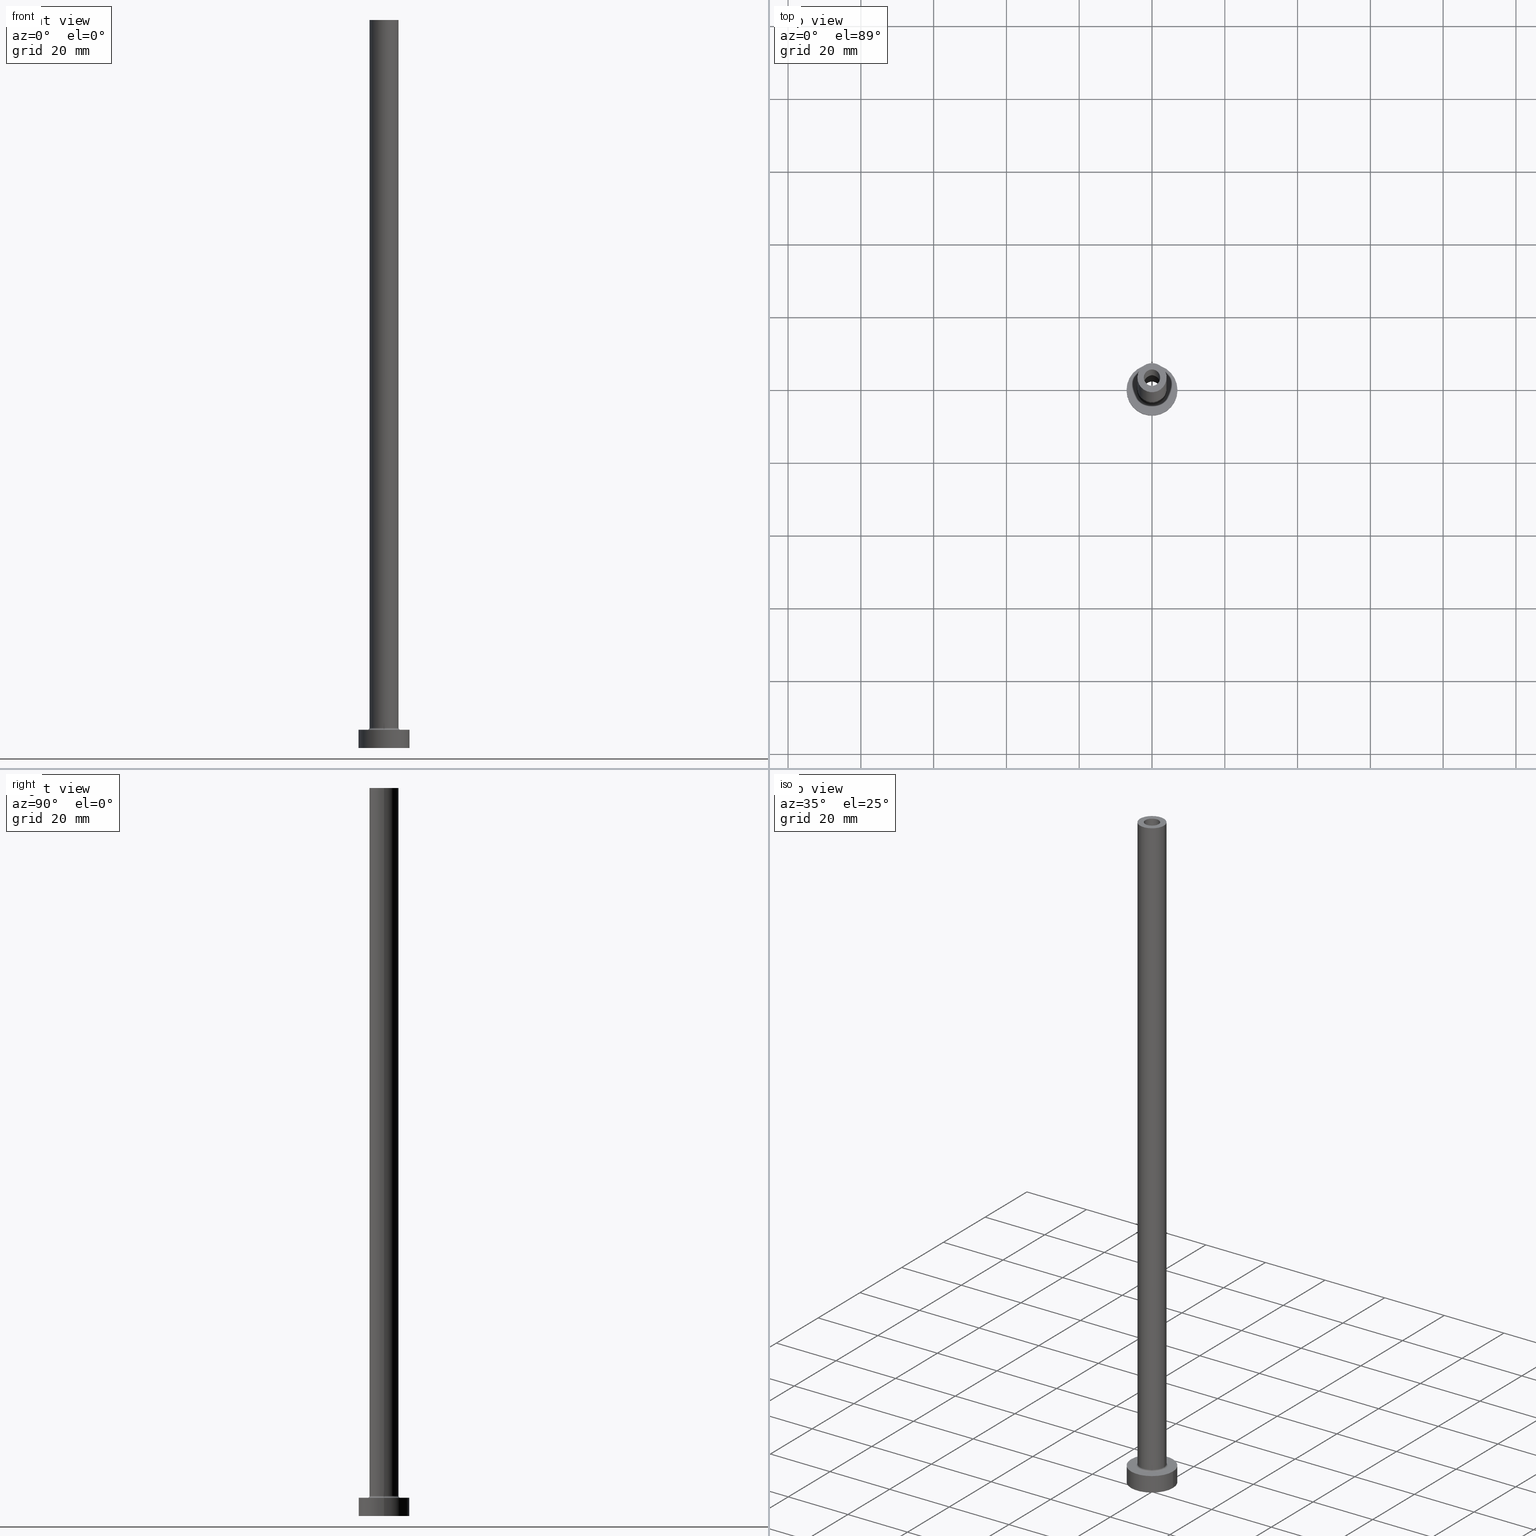
[diagram: canonical four-view strip — front | top / right | iso, engineering-drawing reading convention]
A machine part, canonical four-view strip (front | top / right | iso — engineering-drawing reading convention). The complete STEP part file that produces these views, byte-faithful:
ISO-10303-21;
HEADER;
FILE_DESCRIPTION (( 'STEP AP203' ),
    '1' );
FILE_NAME ('6db5.STEP',
    '2023-02-13T17:22:48',
    ( '' ),
    ( '' ),
    'SwSTEP 2.0',
    'SolidWorks 2019',
    '' );
FILE_SCHEMA (( 'CONFIG_CONTROL_DESIGN' ));
ENDSEC;

DATA;
#1 = PERSON_AND_ORGANIZATION_ROLE ( 'classification_officer' ) ;
#2 = EDGE_CURVE ( 'NONE', #69, #350, #357, .T. ) ;
#3 = PERSON_AND_ORGANIZATION ( #392, #84 ) ;
#4 = AXIS2_PLACEMENT_3D ( 'NONE', #26, #208, #164 ) ;
#5 = APPROVAL_ROLE ( '' ) ;
#6 = AXIS2_PLACEMENT_3D ( 'NONE', #33, #200, #212 ) ;
#7 = PLANE ( 'NONE',  #196 ) ;
#8 = COORDINATED_UNIVERSAL_TIME_OFFSET ( 1, 0, .AHEAD. ) ;
#9 = AXIS2_PLACEMENT_3D ( 'NONE', #232, #157, #407 ) ;
#10 = ORIENTED_EDGE ( 'NONE', *, *, #175, .T. ) ;
#11 = DIRECTION ( 'NONE',  ( 1.000000000000000000, 0.000000000000000000, 0.000000000000000000 ) ) ;
#12 = FACE_OUTER_BOUND ( 'NONE', #436, .T. ) ;
#13 = CIRCLE ( 'NONE', #269, 2.250000000000000000 ) ;
#14 = FACE_OUTER_BOUND ( 'NONE', #342, .T. ) ;
#15 = EDGE_CURVE ( 'NONE', #135, #213, #265, .T. ) ;
#16 = CC_DESIGN_PERSON_AND_ORGANIZATION_ASSIGNMENT ( #282, #40, ( #438 ) ) ;
#17 = CYLINDRICAL_SURFACE ( 'NONE', #406, 4.000000000000000000 ) ;
#18 = ORIENTED_EDGE ( 'NONE', *, *, #175, .F. ) ;
#19 = DIRECTION ( 'NONE',  ( -1.000000000000000000, 1.224646799147351482E-16, 0.000000000000000000 ) ) ;
#20 = AXIS2_PLACEMENT_3D ( 'NONE', #120, #184, #259 ) ;
#21 = DIRECTION ( 'NONE',  ( 1.000000000000000000, 0.000000000000000000, 0.000000000000000000 ) ) ;
#22 = ORIENTED_EDGE ( 'NONE', *, *, #197, .F. ) ;
#23 = DIRECTION ( 'NONE',  ( -0.000000000000000000, -0.000000000000000000, -1.000000000000000000 ) ) ;
#24 = ORIENTED_EDGE ( 'NONE', *, *, #322, .T. ) ;
#25 = VERTEX_POINT ( 'NONE', #429 ) ;
#26 = CARTESIAN_POINT ( 'NONE',  ( 0.000000000000000000, 0.000000000000000000, 200.0000000000000000 ) ) ;
#27 = EDGE_CURVE ( 'NONE', #213, #135, #49, .T. ) ;
#28 = EDGE_CURVE ( 'NONE', #94, #354, #335, .T. ) ;
#29 = ADVANCED_FACE ( 'NONE', ( #76 ), #220, .T. ) ;
#30 = ORIENTED_EDGE ( 'NONE', *, *, #197, .T. ) ;
#31 = DIRECTION ( 'NONE',  ( 0.000000000000000000, 0.000000000000000000, 1.000000000000000000 ) ) ;
#32 = ORIENTED_EDGE ( 'NONE', *, *, #2, .T. ) ;
#33 = CARTESIAN_POINT ( 'NONE',  ( 0.000000000000000000, 0.000000000000000000, 200.0000000000000000 ) ) ;
#34 = CALENDAR_DATE ( 2023, 13, 2 ) ;
#35 = APPROVAL_DATE_TIME ( #432, #98 ) ;
#36 = LINE ( 'NONE', #309, #298 ) ;
#37 = LOCAL_TIME ( 18, 22, 48.00000000000000000, #8 ) ;
#38 = LINE ( 'NONE', #319, #292 ) ;
#39 = CALENDAR_DATE ( 2023, 13, 2 ) ;
#40 = PERSON_AND_ORGANIZATION_ROLE ( 'design_supplier' ) ;
#41 = CARTESIAN_POINT ( 'NONE',  ( 0.000000000000000000, 0.000000000000000000, 5.500000000000005329 ) ) ;
#42 = ADVANCED_FACE ( 'NONE', ( #79 ), #73, .F. ) ;
#43 = DATE_AND_TIME ( #39, #37 ) ;
#44 = CC_DESIGN_SECURITY_CLASSIFICATION ( #160, ( #438 ) ) ;
#45 = VECTOR ( 'NONE', #248, 1000.000000000000000 ) ;
#46 = CC_DESIGN_DATE_AND_TIME_ASSIGNMENT ( #43, #286, ( #160 ) ) ;
#47 = LINE ( 'NONE', #226, #63 ) ;
#48 = VECTOR ( 'NONE', #251, 1000.000000000000000 ) ;
#49 = CIRCLE ( 'NONE', #307, 2.250000000000000000 ) ;
#50 = EDGE_CURVE ( 'NONE', #94, #241, #178, .T. ) ;
#51 = CARTESIAN_POINT ( 'NONE',  ( -4.000000000000000000, 0.000000000000000000, 200.0000000000000000 ) ) ;
#52 = CC_DESIGN_DATE_AND_TIME_ASSIGNMENT ( #393, #321, ( #317 ) ) ;
#53 = DIRECTION ( 'NONE',  ( 1.224646799147353207E-16, 1.000000000000000000, -0.000000000000000000 ) ) ;
#54 = ORIENTED_EDGE ( 'NONE', *, *, #445, .F. ) ;
#55 = FACE_BOUND ( 'NONE', #264, .T. ) ;
#56 = CIRCLE ( 'NONE', #402, 2.399999999999999911 ) ;
#57 = DIRECTION ( 'NONE',  ( 0.000000000000000000, 0.000000000000000000, 1.000000000000000000 ) ) ;
#58 = PRODUCT_RELATED_PRODUCT_CATEGORY ( 'detail', '', ( #347 ) ) ;
#59 =( LENGTH_UNIT ( ) NAMED_UNIT ( * ) SI_UNIT ( .MILLI., .METRE. ) );
#60 = DIRECTION ( 'NONE',  ( 0.000000000000000000, 0.000000000000000000, -1.000000000000000000 ) ) ;
#61 = DIRECTION ( 'NONE',  ( 0.000000000000000000, 0.000000000000000000, 1.000000000000000000 ) ) ;
#62 = ORIENTED_EDGE ( 'NONE', *, *, #87, .F. ) ;
#63 = VECTOR ( 'NONE', #224, 1000.000000000000000 ) ;
#64 = EDGE_LOOP ( 'NONE', ( #266, #399 ) ) ;
#65 = DIRECTION ( 'NONE',  ( 1.000000000000000000, 0.000000000000000000, -0.000000000000000000 ) ) ;
#66 = ORIENTED_EDGE ( 'NONE', *, *, #448, .F. ) ;
#67 = CARTESIAN_POINT ( 'NONE',  ( 0.000000000000000000, 0.000000000000000000, 5.500000000000005329 ) ) ;
#68 = DIRECTION ( 'NONE',  ( -1.000000000000000000, 0.000000000000000000, 0.000000000000000000 ) ) ;
#69 = VERTEX_POINT ( 'NONE', #152 ) ;
#70 = COORDINATED_UNIVERSAL_TIME_OFFSET ( 1, 0, .AHEAD. ) ;
#71 = PERSON_AND_ORGANIZATION ( #392, #84 ) ;
#72 = FACE_OUTER_BOUND ( 'NONE', #201, .T. ) ;
#73 = TOROIDAL_SURFACE ( 'NONE', #283, 4.500000000000000888, 0.5000000000000000000 ) ;
#74 = ADVANCED_FACE ( 'NONE', ( #303 ), #234, .F. ) ;
#75 = CIRCLE ( 'NONE', #338, 0.5000000000000004441 ) ;
#76 = FACE_OUTER_BOUND ( 'NONE', #278, .T. ) ;
#77 = DIRECTION ( 'NONE',  ( 1.000000000000000000, 0.000000000000000000, 0.000000000000000000 ) ) ;
#78 = ADVANCED_FACE ( 'NONE', ( #275 ), #419, .F. ) ;
#79 = FACE_OUTER_BOUND ( 'NONE', #440, .T. ) ;
#80 = VERTEX_POINT ( 'NONE', #249 ) ;
#81 = EDGE_CURVE ( 'NONE', #411, #388, #56, .T. ) ;
#82 = ORIENTED_EDGE ( 'NONE', *, *, #87, .T. ) ;
#83 = CARTESIAN_POINT ( 'NONE',  ( -4.500000000000000888, 5.510910596163089556E-16, 5.500000000000005329 ) ) ;
#84 = ORGANIZATION ( 'NEUR�EN�', 'NEUR�EN�', '' ) ;
#85 = CIRCLE ( 'NONE', #442, 0.5000000000000004441 ) ;
#86 = CARTESIAN_POINT ( 'NONE',  ( 0.000000000000000000, 0.000000000000000000, 5.000000000000000000 ) ) ;
#87 = EDGE_CURVE ( 'NONE', #239, #130, #430, .T. ) ;
#88 = EDGE_LOOP ( 'NONE', ( #377, #102 ) ) ;
#89 = DIRECTION ( 'NONE',  ( 0.000000000000000000, 0.000000000000000000, -1.000000000000000000 ) ) ;
#90 = UNCERTAINTY_MEASURE_WITH_UNIT (LENGTH_MEASURE( 1.000000000000000082E-05 ), #59, 'distance_accuracy_value', 'NONE');
#91 = LOCAL_TIME ( 18, 22, 48.00000000000000000, #180 ) ;
#92 = FACE_BOUND ( 'NONE', #370, .T. ) ;
#93 = EDGE_CURVE ( 'NONE', #350, #69, #375, .T. ) ;
#94 = VERTEX_POINT ( 'NONE', #141 ) ;
#95 = CARTESIAN_POINT ( 'NONE',  ( -2.399999999999999911, 0.000000000000000000, 155.0000000000000284 ) ) ;
#96 = EDGE_LOOP ( 'NONE', ( #410, #137 ) ) ;
#97 = ORIENTED_EDGE ( 'NONE', *, *, #27, .F. ) ;
#98 = APPROVAL ( #422, 'NEUR�EN�' ) ;
#99 = ORIENTED_EDGE ( 'NONE', *, *, #365, .F. ) ;
#100 = AXIS2_PLACEMENT_3D ( 'NONE', #304, #111, #77 ) ;
#101 = DIRECTION ( 'NONE',  ( 0.000000000000000000, 0.000000000000000000, 1.000000000000000000 ) ) ;
#102 = ORIENTED_EDGE ( 'NONE', *, *, #280, .T. ) ;
#103 = CARTESIAN_POINT ( 'NONE',  ( -2.250000000000000000, 0.000000000000000000, 200.0000000000000000 ) ) ;
#104 = DIRECTION ( 'NONE',  ( 0.000000000000000000, 0.000000000000000000, 1.000000000000000000 ) ) ;
#105 = MANIFOLD_SOLID_BREP ( 'Odebrat vysunut�m4', #194 ) ;
#106 = CARTESIAN_POINT ( 'NONE',  ( 2.250000000000000000, 2.755455298081543792E-16, 200.0000000000000000 ) ) ;
#107 = SHAPE_DEFINITION_REPRESENTATION ( #172, #444 ) ;
#108 = AXIS2_PLACEMENT_3D ( 'NONE', #390, #314, #274 ) ;
#109 = CARTESIAN_POINT ( 'NONE',  ( 4.000000000000000000, 4.898587196589412829E-16, 200.0000000000000000 ) ) ;
#110 =( NAMED_UNIT ( * ) PLANE_ANGLE_UNIT ( ) SI_UNIT ( $, .RADIAN. ) );
#111 = DIRECTION ( 'NONE',  ( 0.000000000000000000, 0.000000000000000000, 1.000000000000000000 ) ) ;
#112 = DIRECTION ( 'NONE',  ( -0.000000000000000000, -0.000000000000000000, -1.000000000000000000 ) ) ;
#113 = CALENDAR_DATE ( 2023, 13, 2 ) ;
#114 = ORIENTED_EDGE ( 'NONE', *, *, #448, .T. ) ;
#115 = DIRECTION ( 'NONE',  ( 1.000000000000000000, 0.000000000000000000, 0.000000000000000000 ) ) ;
#116 = AXIS2_PLACEMENT_3D ( 'NONE', #457, #243, #68 ) ;
#117 = ORIENTED_EDGE ( 'NONE', *, *, #324, .F. ) ;
#118 = ORIENTED_EDGE ( 'NONE', *, *, #324, .T. ) ;
#119 = AXIS2_PLACEMENT_3D ( 'NONE', #443, #123, #154 ) ;
#120 = CARTESIAN_POINT ( 'NONE',  ( 0.000000000000000000, 0.000000000000000000, 200.0000000000000000 ) ) ;
#121 = EDGE_CURVE ( 'NONE', #449, #373, #183, .T. ) ;
#122 = DIRECTION ( 'NONE',  ( 1.000000000000000000, 0.000000000000000000, 0.000000000000000000 ) ) ;
#123 = DIRECTION ( 'NONE',  ( 0.000000000000000000, 0.000000000000000000, -1.000000000000000000 ) ) ;
#124 = DIRECTION ( 'NONE',  ( -1.000000000000000000, 0.000000000000000000, 0.000000000000000000 ) ) ;
#125 = AXIS2_PLACEMENT_3D ( 'NONE', #328, #398, #362 ) ;
#126 = APPROVAL_PERSON_ORGANIZATION ( #395, #380, #389 ) ;
#127 = CIRCLE ( 'NONE', #385, 4.500000000000000888 ) ;
#128 = AXIS2_PLACEMENT_3D ( 'NONE', #418, #345, #316 ) ;
#129 = PLANE ( 'NONE',  #244 ) ;
#130 = VERTEX_POINT ( 'NONE', #106 ) ;
#131 = EDGE_LOOP ( 'NONE', ( #62, #206 ) ) ;
#132 = LOCAL_TIME ( 18, 22, 48.00000000000000000, #257 ) ;
#133 = CARTESIAN_POINT ( 'NONE',  ( 0.000000000000000000, 0.000000000000000000, 155.0000000000000284 ) ) ;
#134 = ORIENTED_EDGE ( 'NONE', *, *, #81, .F. ) ;
#135 = VERTEX_POINT ( 'NONE', #216 ) ;
#136 = CARTESIAN_POINT ( 'NONE',  ( 0.000000000000000000, 0.000000000000000000, 200.0000000000000000 ) ) ;
#137 = ORIENTED_EDGE ( 'NONE', *, *, #50, .T. ) ;
#138 = CARTESIAN_POINT ( 'NONE',  ( 7.000000000000000000, 8.572527594031473190E-16, 5.000000000000000000 ) ) ;
#139 = APPROVAL_STATUS ( 'not_yet_approved' ) ;
#140 = DIRECTION ( 'NONE',  ( -1.000000000000000000, 0.000000000000000000, 0.000000000000000000 ) ) ;
#141 = CARTESIAN_POINT ( 'NONE',  ( 4.000000000000000000, 4.898587196589412829E-16, 200.0000000000000000 ) ) ;
#142 = APPROVAL_DATE_TIME ( #281, #380 ) ;
#143 = PERSON_AND_ORGANIZATION ( #392, #84 ) ;
#144 = EDGE_CURVE ( 'NONE', #241, #225, #38, .T. ) ;
#145 = CARTESIAN_POINT ( 'NONE',  ( 0.000000000000000000, 0.000000000000000000, 200.0000000000000000 ) ) ;
#146 = AXIS2_PLACEMENT_3D ( 'NONE', #413, #295, #124 ) ;
#147 = COORDINATED_UNIVERSAL_TIME_OFFSET ( 1, 0, .AHEAD. ) ;
#148 = APPROVAL_PERSON_ORGANIZATION ( #71, #98, #217 ) ;
#149 = CARTESIAN_POINT ( 'NONE',  ( 2.399999999999999911, 2.939152317953647106E-16, 155.0000000000000284 ) ) ;
#150 = DATE_AND_TIME ( #427, #91 ) ;
#151 = ORIENTED_EDGE ( 'NONE', *, *, #404, .T. ) ;
#152 = CARTESIAN_POINT ( 'NONE',  ( 7.000000000000000000, 8.572527594031473190E-16, 0.000000000000000000 ) ) ;
#153 = APPROVAL_PERSON_ORGANIZATION ( #358, #401, #5 ) ;
#154 = DIRECTION ( 'NONE',  ( -1.000000000000000000, 0.000000000000000000, 0.000000000000000000 ) ) ;
#155 = FACE_OUTER_BOUND ( 'NONE', #96, .T. ) ;
#156 = CARTESIAN_POINT ( 'NONE',  ( 0.000000000000000000, 0.000000000000000000, 200.0000000000000000 ) ) ;
#157 = DIRECTION ( 'NONE',  ( 0.000000000000000000, 0.000000000000000000, 1.000000000000000000 ) ) ;
#158 = DIRECTION ( 'NONE',  ( 1.000000000000000000, 0.000000000000000000, -0.000000000000000000 ) ) ;
#159 = AXIS2_PLACEMENT_3D ( 'NONE', #256, #179, #330 ) ;
#160 = SECURITY_CLASSIFICATION ( '', '', #252 ) ;
#161 = CARTESIAN_POINT ( 'NONE',  ( -4.500000000000000888, 5.510910596163088569E-16, 5.000000000000002665 ) ) ;
#162 = ADVANCED_FACE ( 'NONE', ( #165 ), #219, .F. ) ;
#163 = ORIENTED_EDGE ( 'NONE', *, *, #341, .F. ) ;
#164 = DIRECTION ( 'NONE',  ( 1.000000000000000000, 0.000000000000000000, 0.000000000000000000 ) ) ;
#165 = FACE_OUTER_BOUND ( 'NONE', #223, .T. ) ;
#166 = AXIS2_PLACEMENT_3D ( 'NONE', #215, #383, #412 ) ;
#167 = DIRECTION ( 'NONE',  ( 0.000000000000000000, 0.000000000000000000, 1.000000000000000000 ) ) ;
#168 = EDGE_CURVE ( 'NONE', #25, #237, #127, .T. ) ;
#169 = EDGE_CURVE ( 'NONE', #130, #239, #13, .T. ) ;
#170 = ORIENTED_EDGE ( 'NONE', *, *, #190, .T. ) ;
#171 = ORIENTED_EDGE ( 'NONE', *, *, #365, .T. ) ;
#172 = PRODUCT_DEFINITION_SHAPE ( 'NONE', 'NONE',  #317 ) ;
#173 = PERSON_AND_ORGANIZATION ( #392, #84 ) ;
#174 = CARTESIAN_POINT ( 'NONE',  ( 0.000000000000000000, 0.000000000000000000, 0.000000000000000000 ) ) ;
#175 = EDGE_CURVE ( 'NONE', #354, #25, #75, .T. ) ;
#176 = DIRECTION ( 'NONE',  ( 1.000000000000000000, 0.000000000000000000, 0.000000000000000000 ) ) ;
#177 = CC_DESIGN_PERSON_AND_ORGANIZATION_ASSIGNMENT ( #3, #320, ( #347 ) ) ;
#178 = CIRCLE ( 'NONE', #159, 4.000000000000000000 ) ;
#179 = DIRECTION ( 'NONE',  ( 0.000000000000000000, 0.000000000000000000, 1.000000000000000000 ) ) ;
#180 = COORDINATED_UNIVERSAL_TIME_OFFSET ( 1, 0, .AHEAD. ) ;
#181 = CC_DESIGN_APPROVAL ( #98, ( #438 ) ) ;
#182 = APPLICATION_CONTEXT ( 'configuration controlled 3d designs of mechanical parts and assemblies' ) ;
#183 = CIRCLE ( 'NONE', #326, 7.000000000000000000 ) ;
#184 = DIRECTION ( 'NONE',  ( 0.000000000000000000, 0.000000000000000000, 1.000000000000000000 ) ) ;
#185 = AXIS2_PLACEMENT_3D ( 'NONE', #302, #263, #122 ) ;
#186 = DIRECTION ( 'NONE',  ( 1.000000000000000000, 0.000000000000000000, 0.000000000000000000 ) ) ;
#187 = DIRECTION ( 'NONE',  ( -0.000000000000000000, -0.000000000000000000, -1.000000000000000000 ) ) ;
#188 = ORIENTED_EDGE ( 'NONE', *, *, #168, .F. ) ;
#189 = DIRECTION ( 'NONE',  ( 1.000000000000000000, 0.000000000000000000, 0.000000000000000000 ) ) ;
#190 = EDGE_CURVE ( 'NONE', #225, #237, #85, .T. ) ;
#191 = ORIENTED_EDGE ( 'NONE', *, *, #15, .T. ) ;
#192 = CC_DESIGN_PERSON_AND_ORGANIZATION_ASSIGNMENT ( #363, #214, ( #438 ) ) ;
#193 = FACE_OUTER_BOUND ( 'NONE', #64, .T. ) ;
#194 = CLOSED_SHELL ( 'NONE', ( #333, #293, #42, #272, #29, #258, #433, #305, #360, #425, #162, #78, #361, #74 ) ) ;
#195 = CARTESIAN_POINT ( 'NONE',  ( 0.000000000000000000, 0.000000000000000000, 155.0000000000000284 ) ) ;
#196 = AXIS2_PLACEMENT_3D ( 'NONE', #369, #434, #158 ) ;
#197 = EDGE_CURVE ( 'NONE', #388, #411, #245, .T. ) ;
#198 = FACE_OUTER_BOUND ( 'NONE', #273, .T. ) ;
#199 = CARTESIAN_POINT ( 'NONE',  ( -7.000000000000000000, 0.000000000000000000, 5.000000000000000000 ) ) ;
#200 = DIRECTION ( 'NONE',  ( 0.000000000000000000, 0.000000000000000000, 1.000000000000000000 ) ) ;
#201 = EDGE_LOOP ( 'NONE', ( #417, #299, #313, #230 ) ) ;
#202 = ORIENTED_EDGE ( 'NONE', *, *, #81, .T. ) ;
#203 = ORIENTED_EDGE ( 'NONE', *, *, #121, .T. ) ;
#204 = CIRCLE ( 'NONE', #4, 4.000000000000000000 ) ;
#205 = CIRCLE ( 'NONE', #364, 4.500000000000000888 ) ;
#206 = ORIENTED_EDGE ( 'NONE', *, *, #169, .F. ) ;
#207 = CC_DESIGN_PERSON_AND_ORGANIZATION_ASSIGNMENT ( #143, #1, ( #160 ) ) ;
#208 = DIRECTION ( 'NONE',  ( 0.000000000000000000, 0.000000000000000000, 1.000000000000000000 ) ) ;
#209 = DIRECTION ( 'NONE',  ( 1.000000000000000000, 0.000000000000000000, 0.000000000000000000 ) ) ;
#210 = APPLICATION_CONTEXT ( 'configuration controlled 3d designs of mechanical parts and assemblies' ) ;
#211 = ORIENTED_EDGE ( 'NONE', *, *, #144, .F. ) ;
#212 = DIRECTION ( 'NONE',  ( 1.000000000000000000, 0.000000000000000000, 0.000000000000000000 ) ) ;
#213 = VERTEX_POINT ( 'NONE', #262 ) ;
#214 = PERSON_AND_ORGANIZATION_ROLE ( 'creator' ) ;
#215 = CARTESIAN_POINT ( 'NONE',  ( 0.000000000000000000, 0.000000000000000000, 200.0000000000000000 ) ) ;
#216 = CARTESIAN_POINT ( 'NONE',  ( -2.250000000000000000, 0.000000000000000000, 155.0000000000000284 ) ) ;
#217 = APPROVAL_ROLE ( '' ) ;
#218 = CC_DESIGN_APPROVAL ( #380, ( #317 ) ) ;
#219 = TOROIDAL_SURFACE ( 'NONE', #359, 4.500000000000000888, 0.5000000000000000000 ) ;
#220 = CYLINDRICAL_SURFACE ( 'NONE', #125, 7.000000000000000000 ) ;
#221 = APPLICATION_PROTOCOL_DEFINITION ( 'international standard', 'config_control_design', 1994, #182 ) ;
#222 = AXIS2_PLACEMENT_3D ( 'NONE', #136, #270, #140 ) ;
#223 = EDGE_LOOP ( 'NONE', ( #446, #382, #10, #453 ) ) ;
#224 = DIRECTION ( 'NONE',  ( 0.000000000000000000, 0.000000000000000000, -1.000000000000000000 ) ) ;
#225 = VERTEX_POINT ( 'NONE', #339 ) ;
#226 = CARTESIAN_POINT ( 'NONE',  ( 2.399999999999999911, 2.939152317953647106E-16, 161.7882250993908997 ) ) ;
#227 = CIRCLE ( 'NONE', #100, 4.000000000000000000 ) ;
#228 = CARTESIAN_POINT ( 'NONE',  ( 2.399999999999999911, 2.939152317953647106E-16, 0.000000000000000000 ) ) ;
#229 = ORIENTED_EDGE ( 'NONE', *, *, #346, .F. ) ;
#230 = ORIENTED_EDGE ( 'NONE', *, *, #461, .T. ) ;
#231 = CARTESIAN_POINT ( 'NONE',  ( -2.250000000000000000, 0.000000000000000000, 200.0000000000000000 ) ) ;
#232 = CARTESIAN_POINT ( 'NONE',  ( 0.000000000000000000, 0.000000000000000000, 0.000000000000000000 ) ) ;
#233 = DIRECTION ( 'NONE',  ( 0.000000000000000000, -1.000000000000000000, 0.000000000000000000 ) ) ;
#234 = CYLINDRICAL_SURFACE ( 'NONE', #146, 2.250000000000000000 ) ;
#235 = LOCAL_TIME ( 18, 22, 48.00000000000000000, #147 ) ;
#236 = AXIS2_PLACEMENT_3D ( 'NONE', #271, #356, #459 ) ;
#237 = VERTEX_POINT ( 'NONE', #161 ) ;
#238 = CYLINDRICAL_SURFACE ( 'NONE', #222, 2.250000000000000000 ) ;
#239 = VERTEX_POINT ( 'NONE', #231 ) ;
#240 = CYLINDRICAL_SURFACE ( 'NONE', #166, 4.000000000000000000 ) ;
#241 = VERTEX_POINT ( 'NONE', #51 ) ;
#242 = DIRECTION ( 'NONE',  ( -0.000000000000000000, -0.000000000000000000, -1.000000000000000000 ) ) ;
#243 = DIRECTION ( 'NONE',  ( 0.000000000000000000, 0.000000000000000000, -1.000000000000000000 ) ) ;
#244 = AXIS2_PLACEMENT_3D ( 'NONE', #261, #61, #318 ) ;
#245 = CIRCLE ( 'NONE', #351, 2.399999999999999911 ) ;
#246 = CIRCLE ( 'NONE', #128, 2.399999999999999911 ) ;
#247 = CARTESIAN_POINT ( 'NONE',  ( 2.250000000000000000, 2.755455298081543792E-16, 200.0000000000000000 ) ) ;
#248 = DIRECTION ( 'NONE',  ( 0.000000000000000000, 0.000000000000000000, -1.000000000000000000 ) ) ;
#249 = CARTESIAN_POINT ( 'NONE',  ( -2.399999999999999911, 0.000000000000000000, 0.000000000000000000 ) ) ;
#250 = APPROVAL_STATUS ( 'not_yet_approved' ) ;
#251 = DIRECTION ( 'NONE',  ( -0.000000000000000000, -0.000000000000000000, -1.000000000000000000 ) ) ;
#252 = SECURITY_CLASSIFICATION_LEVEL ( 'unclassified' ) ;
#253 = CARTESIAN_POINT ( 'NONE',  ( 0.000000000000000000, 0.000000000000000000, 155.0000000000000284 ) ) ;
#254 = DIRECTION ( 'NONE',  ( 0.000000000000000000, 0.000000000000000000, 1.000000000000000000 ) ) ;
#255 = EDGE_LOOP ( 'NONE', ( #22, #134 ) ) ;
#256 = CARTESIAN_POINT ( 'NONE',  ( 0.000000000000000000, 0.000000000000000000, 200.0000000000000000 ) ) ;
#257 = COORDINATED_UNIVERSAL_TIME_OFFSET ( 1, 0, .AHEAD. ) ;
#258 = ADVANCED_FACE ( 'NONE', ( #368 ), #371, .T. ) ;
#259 = DIRECTION ( 'NONE',  ( 1.000000000000000000, 0.000000000000000000, -0.000000000000000000 ) ) ;
#260 = VECTOR ( 'NONE', #242, 1000.000000000000000 ) ;
#261 = CARTESIAN_POINT ( 'NONE',  ( 0.000000000000000000, 0.000000000000000000, 0.000000000000000000 ) ) ;
#262 = CARTESIAN_POINT ( 'NONE',  ( 2.250000000000000000, 2.755455298081543792E-16, 155.0000000000000284 ) ) ;
#263 = DIRECTION ( 'NONE',  ( 0.000000000000000000, 0.000000000000000000, 1.000000000000000000 ) ) ;
#264 = EDGE_LOOP ( 'NONE', ( #415, #229 ) ) ;
#265 = CIRCLE ( 'NONE', #185, 2.250000000000000000 ) ;
#266 = ORIENTED_EDGE ( 'NONE', *, *, #93, .F. ) ;
#267 = CARTESIAN_POINT ( 'NONE',  ( -7.000000000000000000, 0.000000000000000000, 0.000000000000000000 ) ) ;
#268 =( GEOMETRIC_REPRESENTATION_CONTEXT ( 3 ) GLOBAL_UNCERTAINTY_ASSIGNED_CONTEXT ( ( #90 ) ) GLOBAL_UNIT_ASSIGNED_CONTEXT ( ( #59, #110, #426 ) ) REPRESENTATION_CONTEXT ( 'NONE', 'WORKASPACE' ) );
#269 = AXIS2_PLACEMENT_3D ( 'NONE', #145, #301, #189 ) ;
#270 = DIRECTION ( 'NONE',  ( 0.000000000000000000, 0.000000000000000000, -1.000000000000000000 ) ) ;
#271 = CARTESIAN_POINT ( 'NONE',  ( 0.000000000000000000, 0.000000000000000000, 0.000000000000000000 ) ) ;
#272 = ADVANCED_FACE ( 'NONE', ( #198 ), #17, .T. ) ;
#273 = EDGE_LOOP ( 'NONE', ( #312, #421, #24, #211 ) ) ;
#274 = DIRECTION ( 'NONE',  ( 1.000000000000000000, 0.000000000000000000, 0.000000000000000000 ) ) ;
#275 = FACE_OUTER_BOUND ( 'NONE', #414, .T. ) ;
#276 = ORIENTED_EDGE ( 'NONE', *, *, #461, .F. ) ;
#277 = CARTESIAN_POINT ( 'NONE',  ( 0.000000000000000000, 0.000000000000000000, 155.0000000000000284 ) ) ;
#278 = EDGE_LOOP ( 'NONE', ( #296, #118, #32, #54 ) ) ;
#279 = CARTESIAN_POINT ( 'NONE',  ( 0.000000000000000000, 0.000000000000000000, 5.000000000000000000 ) ) ;
#280 = EDGE_CURVE ( 'NONE', #237, #25, #205, .T. ) ;
#281 = DATE_AND_TIME ( #34, #348 ) ;
#282 = PERSON_AND_ORGANIZATION ( #392, #84 ) ;
#283 = AXIS2_PLACEMENT_3D ( 'NONE', #288, #435, #115 ) ;
#284 = APPLICATION_PROTOCOL_DEFINITION ( 'international standard', 'config_control_design', 1994, #210 ) ;
#285 = AXIS2_PLACEMENT_3D ( 'NONE', #174, #331, #289 ) ;
#286 = DATE_TIME_ROLE ( 'classification_date' ) ;
#287 = CARTESIAN_POINT ( 'NONE',  ( -7.000000000000000000, 0.000000000000000000, 5.000000000000000000 ) ) ;
#288 = CARTESIAN_POINT ( 'NONE',  ( 0.000000000000000000, 0.000000000000000000, 5.500000000000005329 ) ) ;
#289 = DIRECTION ( 'NONE',  ( 1.000000000000000000, 0.000000000000000000, 0.000000000000000000 ) ) ;
#290 = CIRCLE ( 'NONE', #428, 7.000000000000000000 ) ;
#291 = ORIENTED_EDGE ( 'NONE', *, *, #169, .T. ) ;
#292 = VECTOR ( 'NONE', #460, 1000.000000000000000 ) ;
#293 = ADVANCED_FACE ( 'NONE', ( #14 ), #405, .F. ) ;
#294 = CC_DESIGN_PERSON_AND_ORGANIZATION_ASSIGNMENT ( #173, #336, ( #317 ) ) ;
#295 = DIRECTION ( 'NONE',  ( 0.000000000000000000, 0.000000000000000000, -1.000000000000000000 ) ) ;
#296 = ORIENTED_EDGE ( 'NONE', *, *, #121, .F. ) ;
#297 = LINE ( 'NONE', #287, #260 ) ;
#298 = VECTOR ( 'NONE', #311, 1000.000000000000000 ) ;
#299 = ORIENTED_EDGE ( 'NONE', *, *, #376, .F. ) ;
#300 = DESIGN_CONTEXT ( 'detailed design', #210, 'design' ) ;
#301 = DIRECTION ( 'NONE',  ( 0.000000000000000000, 0.000000000000000000, 1.000000000000000000 ) ) ;
#302 = CARTESIAN_POINT ( 'NONE',  ( 0.000000000000000000, 0.000000000000000000, 155.0000000000000284 ) ) ;
#303 = FACE_OUTER_BOUND ( 'NONE', #344, .T. ) ;
#304 = CARTESIAN_POINT ( 'NONE',  ( 0.000000000000000000, 0.000000000000000000, 5.500000000000005329 ) ) ;
#305 = ADVANCED_FACE ( 'NONE', ( #55, #193 ), #129, .F. ) ;
#306 = ORIENTED_EDGE ( 'NONE', *, *, #404, .F. ) ;
#307 = AXIS2_PLACEMENT_3D ( 'NONE', #253, #397, #186 ) ;
#308 = ORIENTED_EDGE ( 'NONE', *, *, #346, .T. ) ;
#309 = CARTESIAN_POINT ( 'NONE',  ( 7.000000000000000000, 8.572527594031473190E-16, 5.000000000000000000 ) ) ;
#310 = CIRCLE ( 'NONE', #108, 2.399999999999999911 ) ;
#311 = DIRECTION ( 'NONE',  ( -0.000000000000000000, -0.000000000000000000, -1.000000000000000000 ) ) ;
#312 = ORIENTED_EDGE ( 'NONE', *, *, #50, .F. ) ;
#313 = ORIENTED_EDGE ( 'NONE', *, *, #144, .T. ) ;
#314 = DIRECTION ( 'NONE',  ( -0.000000000000000000, -0.000000000000000000, -1.000000000000000000 ) ) ;
#315 = LINE ( 'NONE', #424, #384 ) ;
#316 = DIRECTION ( 'NONE',  ( 1.000000000000000000, 0.000000000000000000, 0.000000000000000000 ) ) ;
#317 = PRODUCT_DEFINITION ( 'NEZN�M�', '', #438, #300 ) ;
#318 = DIRECTION ( 'NONE',  ( 1.000000000000000000, 0.000000000000000000, -0.000000000000000000 ) ) ;
#319 = CARTESIAN_POINT ( 'NONE',  ( -4.000000000000000000, 0.000000000000000000, 200.0000000000000000 ) ) ;
#320 = PERSON_AND_ORGANIZATION_ROLE ( 'design_owner' ) ;
#321 = DATE_TIME_ROLE ( 'creation_date' ) ;
#322 = EDGE_CURVE ( 'NONE', #354, #225, #403, .T. ) ;
#323 = AXIS2_PLACEMENT_3D ( 'NONE', #133, #101, #65 ) ;
#324 = EDGE_CURVE ( 'NONE', #449, #69, #36, .T. ) ;
#325 = EDGE_CURVE ( 'NONE', #80, #408, #246, .T. ) ;
#326 = AXIS2_PLACEMENT_3D ( 'NONE', #279, #104, #391 ) ;
#327 = FACE_BOUND ( 'NONE', #131, .T. ) ;
#328 = CARTESIAN_POINT ( 'NONE',  ( 0.000000000000000000, 0.000000000000000000, 5.000000000000000000 ) ) ;
#329 = CALENDAR_DATE ( 2023, 13, 2 ) ;
#330 = DIRECTION ( 'NONE',  ( 1.000000000000000000, 0.000000000000000000, 0.000000000000000000 ) ) ;
#331 = DIRECTION ( 'NONE',  ( 0.000000000000000000, 0.000000000000000000, 1.000000000000000000 ) ) ;
#332 = ORIENTED_EDGE ( 'NONE', *, *, #341, .T. ) ;
#333 = ADVANCED_FACE ( 'NONE', ( #454 ), #238, .F. ) ;
#334 = FACE_BOUND ( 'NONE', #88, .T. ) ;
#335 = LINE ( 'NONE', #109, #48 ) ;
#336 = PERSON_AND_ORGANIZATION_ROLE ( 'creator' ) ;
#337 = DIRECTION ( 'NONE',  ( 1.000000000000000000, 0.000000000000000000, 0.000000000000000000 ) ) ;
#338 = AXIS2_PLACEMENT_3D ( 'NONE', #374, #233, #89 ) ;
#339 = CARTESIAN_POINT ( 'NONE',  ( -4.000000000000000000, 0.000000000000000000, 5.500000000000005329 ) ) ;
#340 = PLANE ( 'NONE',  #20 ) ;
#341 = EDGE_CURVE ( 'NONE', #239, #135, #423, .T. ) ;
#342 = EDGE_LOOP ( 'NONE', ( #30, #151, #308, #66 ) ) ;
#343 = CARTESIAN_POINT ( 'NONE',  ( 0.000000000000000000, 0.000000000000000000, 5.000000000000000000 ) ) ;
#344 = EDGE_LOOP ( 'NONE', ( #99, #291, #332, #97 ) ) ;
#345 = DIRECTION ( 'NONE',  ( -0.000000000000000000, -0.000000000000000000, -1.000000000000000000 ) ) ;
#346 = EDGE_CURVE ( 'NONE', #408, #80, #310, .T. ) ;
#347 = PRODUCT ( '6db5', '6db5', '', ( #439 ) ) ;
#348 = LOCAL_TIME ( 18, 22, 48.00000000000000000, #70 ) ;
#349 = DIRECTION ( 'NONE',  ( 0.000000000000000000, 0.000000000000000000, 1.000000000000000000 ) ) ;
#350 = VERTEX_POINT ( 'NONE', #267 ) ;
#351 = AXIS2_PLACEMENT_3D ( 'NONE', #195, #57, #21 ) ;
#352 = ORIENTED_EDGE ( 'NONE', *, *, #93, .T. ) ;
#353 = CARTESIAN_POINT ( 'NONE',  ( 0.000000000000000000, 0.000000000000000000, 5.000000000000000000 ) ) ;
#354 = VERTEX_POINT ( 'NONE', #455 ) ;
#355 = DIRECTION ( 'NONE',  ( 1.000000000000000000, 0.000000000000000000, 0.000000000000000000 ) ) ;
#356 = DIRECTION ( 'NONE',  ( 0.000000000000000000, 0.000000000000000000, 1.000000000000000000 ) ) ;
#357 = CIRCLE ( 'NONE', #9, 7.000000000000000000 ) ;
#358 = PERSON_AND_ORGANIZATION ( #392, #84 ) ;
#359 = AXIS2_PLACEMENT_3D ( 'NONE', #41, #254, #11 ) ;
#360 = ADVANCED_FACE ( 'NONE', ( #72 ), #240, .T. ) ;
#361 = ADVANCED_FACE ( 'NONE', ( #92, #416 ), #451, .F. ) ;
#362 = DIRECTION ( 'NONE',  ( -1.000000000000000000, 0.000000000000000000, 0.000000000000000000 ) ) ;
#363 = PERSON_AND_ORGANIZATION ( #392, #84 ) ;
#364 = AXIS2_PLACEMENT_3D ( 'NONE', #343, #187, #337 ) ;
#365 = EDGE_CURVE ( 'NONE', #130, #213, #378, .T. ) ;
#366 = ORIENTED_EDGE ( 'NONE', *, *, #394, .F. ) ;
#367 = AXIS2_PLACEMENT_3D ( 'NONE', #67, #167, #355 ) ;
#368 = FACE_OUTER_BOUND ( 'NONE', #458, .T. ) ;
#369 = CARTESIAN_POINT ( 'NONE',  ( 0.000000000000000000, 0.000000000000000000, 5.000000000000000000 ) ) ;
#370 = EDGE_LOOP ( 'NONE', ( #191, #400 ) ) ;
#371 = CYLINDRICAL_SURFACE ( 'NONE', #420, 7.000000000000000000 ) ;
#372 = DIRECTION ( 'NONE',  ( -0.000000000000000000, -0.000000000000000000, -1.000000000000000000 ) ) ;
#373 = VERTEX_POINT ( 'NONE', #199 ) ;
#374 = CARTESIAN_POINT ( 'NONE',  ( 4.500000000000000888, 0.000000000000000000, 5.500000000000005329 ) ) ;
#375 = CIRCLE ( 'NONE', #236, 7.000000000000000000 ) ;
#376 = EDGE_CURVE ( 'NONE', #241, #94, #204, .T. ) ;
#377 = ORIENTED_EDGE ( 'NONE', *, *, #168, .T. ) ;
#378 = LINE ( 'NONE', #247, #387 ) ;
#379 = EDGE_LOOP ( 'NONE', ( #82, #171, #450, #163 ) ) ;
#380 = APPROVAL ( #139, 'NEUR�EN�' ) ;
#381 = ORIENTED_EDGE ( 'NONE', *, *, #445, .T. ) ;
#382 = ORIENTED_EDGE ( 'NONE', *, *, #322, .F. ) ;
#383 = DIRECTION ( 'NONE',  ( -0.000000000000000000, -0.000000000000000000, -1.000000000000000000 ) ) ;
#384 = VECTOR ( 'NONE', #456, 1000.000000000000000 ) ;
#385 = AXIS2_PLACEMENT_3D ( 'NONE', #452, #112, #176 ) ;
#386 = ORIENTED_EDGE ( 'NONE', *, *, #325, .T. ) ;
#387 = VECTOR ( 'NONE', #60, 1000.000000000000000 ) ;
#388 = VERTEX_POINT ( 'NONE', #95 ) ;
#389 = APPROVAL_ROLE ( '' ) ;
#390 = CARTESIAN_POINT ( 'NONE',  ( 0.000000000000000000, 0.000000000000000000, 0.000000000000000000 ) ) ;
#391 = DIRECTION ( 'NONE',  ( 1.000000000000000000, 0.000000000000000000, 0.000000000000000000 ) ) ;
#392 = PERSON ( 'NEUR�EN�', 'NEUR�EN�', 'NEUR�EN�', ('NEUR�EN�'), ('NEUR�EN�'), ('NEUR�EN�') ) ;
#393 = DATE_AND_TIME ( #113, #132 ) ;
#394 = EDGE_CURVE ( 'NONE', #373, #449, #290, .T. ) ;
#395 = PERSON_AND_ORGANIZATION ( #392, #84 ) ;
#396 = APPROVAL_DATE_TIME ( #150, #401 ) ;
#397 = DIRECTION ( 'NONE',  ( 0.000000000000000000, 0.000000000000000000, 1.000000000000000000 ) ) ;
#398 = DIRECTION ( 'NONE',  ( -0.000000000000000000, -0.000000000000000000, -1.000000000000000000 ) ) ;
#399 = ORIENTED_EDGE ( 'NONE', *, *, #2, .F. ) ;
#400 = ORIENTED_EDGE ( 'NONE', *, *, #27, .T. ) ;
#401 = APPROVAL ( #250, 'NEUR�EN�' ) ;
#402 = AXIS2_PLACEMENT_3D ( 'NONE', #277, #349, #209 ) ;
#403 = CIRCLE ( 'NONE', #367, 4.000000000000000000 ) ;
#404 = EDGE_CURVE ( 'NONE', #411, #408, #47, .T. ) ;
#405 = CYLINDRICAL_SURFACE ( 'NONE', #119, 2.399999999999999911 ) ;
#406 = AXIS2_PLACEMENT_3D ( 'NONE', #156, #372, #447 ) ;
#407 = DIRECTION ( 'NONE',  ( 1.000000000000000000, 0.000000000000000000, 0.000000000000000000 ) ) ;
#408 = VERTEX_POINT ( 'NONE', #228 ) ;
#409 = DIRECTION ( 'NONE',  ( -1.000000000000000000, 0.000000000000000000, 0.000000000000000000 ) ) ;
#410 = ORIENTED_EDGE ( 'NONE', *, *, #376, .T. ) ;
#411 = VERTEX_POINT ( 'NONE', #149 ) ;
#412 = DIRECTION ( 'NONE',  ( -1.000000000000000000, 0.000000000000000000, 0.000000000000000000 ) ) ;
#413 = CARTESIAN_POINT ( 'NONE',  ( 0.000000000000000000, 0.000000000000000000, 200.0000000000000000 ) ) ;
#414 = EDGE_LOOP ( 'NONE', ( #306, #202, #114, #386 ) ) ;
#415 = ORIENTED_EDGE ( 'NONE', *, *, #325, .F. ) ;
#416 = FACE_OUTER_BOUND ( 'NONE', #255, .T. ) ;
#417 = ORIENTED_EDGE ( 'NONE', *, *, #28, .F. ) ;
#418 = CARTESIAN_POINT ( 'NONE',  ( 0.000000000000000000, 0.000000000000000000, 0.000000000000000000 ) ) ;
#419 = CYLINDRICAL_SURFACE ( 'NONE', #116, 2.399999999999999911 ) ;
#420 = AXIS2_PLACEMENT_3D ( 'NONE', #86, #23, #409 ) ;
#421 = ORIENTED_EDGE ( 'NONE', *, *, #28, .T. ) ;
#422 = APPROVAL_STATUS ( 'not_yet_approved' ) ;
#423 = LINE ( 'NONE', #103, #45 ) ;
#424 = CARTESIAN_POINT ( 'NONE',  ( -2.399999999999999911, 0.000000000000000000, 161.7882250993908997 ) ) ;
#425 = ADVANCED_FACE ( 'NONE', ( #327, #155 ), #340, .T. ) ;
#426 =( NAMED_UNIT ( * ) SI_UNIT ( $, .STERADIAN. ) SOLID_ANGLE_UNIT ( ) );
#427 = CALENDAR_DATE ( 2023, 13, 2 ) ;
#428 = AXIS2_PLACEMENT_3D ( 'NONE', #353, #31, #437 ) ;
#429 = CARTESIAN_POINT ( 'NONE',  ( 4.500000000000000888, 0.000000000000000000, 5.000000000000002665 ) ) ;
#430 = CIRCLE ( 'NONE', #6, 2.250000000000000000 ) ;
#431 = ORIENTED_EDGE ( 'NONE', *, *, #394, .T. ) ;
#432 = DATE_AND_TIME ( #329, #235 ) ;
#433 = ADVANCED_FACE ( 'NONE', ( #334, #12 ), #7, .T. ) ;
#434 = DIRECTION ( 'NONE',  ( 0.000000000000000000, 0.000000000000000000, 1.000000000000000000 ) ) ;
#435 = DIRECTION ( 'NONE',  ( 0.000000000000000000, 0.000000000000000000, 1.000000000000000000 ) ) ;
#436 = EDGE_LOOP ( 'NONE', ( #431, #203 ) ) ;
#437 = DIRECTION ( 'NONE',  ( 1.000000000000000000, 0.000000000000000000, 0.000000000000000000 ) ) ;
#438 = PRODUCT_DEFINITION_FORMATION_WITH_SPECIFIED_SOURCE ( 'LIBOVOLN�', '', #347, .NOT_KNOWN. ) ;
#439 = MECHANICAL_CONTEXT ( 'NONE', #182, 'mechanical' ) ;
#440 = EDGE_LOOP ( 'NONE', ( #276, #170, #188, #18 ) ) ;
#441 = CC_DESIGN_APPROVAL ( #401, ( #160 ) ) ;
#442 = AXIS2_PLACEMENT_3D ( 'NONE', #83, #53, #19 ) ;
#443 = CARTESIAN_POINT ( 'NONE',  ( 0.000000000000000000, 0.000000000000000000, 161.7882250993908997 ) ) ;
#444 = ADVANCED_BREP_SHAPE_REPRESENTATION ( '6db5', ( #105, #285 ), #268 ) ;
#445 = EDGE_CURVE ( 'NONE', #373, #350, #297, .T. ) ;
#446 = ORIENTED_EDGE ( 'NONE', *, *, #190, .F. ) ;
#447 = DIRECTION ( 'NONE',  ( -1.000000000000000000, 0.000000000000000000, 0.000000000000000000 ) ) ;
#448 = EDGE_CURVE ( 'NONE', #388, #80, #315, .T. ) ;
#449 = VERTEX_POINT ( 'NONE', #138 ) ;
#450 = ORIENTED_EDGE ( 'NONE', *, *, #15, .F. ) ;
#451 = PLANE ( 'NONE',  #323 ) ;
#452 = CARTESIAN_POINT ( 'NONE',  ( 0.000000000000000000, 0.000000000000000000, 5.000000000000000000 ) ) ;
#453 = ORIENTED_EDGE ( 'NONE', *, *, #280, .F. ) ;
#454 = FACE_OUTER_BOUND ( 'NONE', #379, .T. ) ;
#455 = CARTESIAN_POINT ( 'NONE',  ( 4.000000000000000000, 4.898587196589412829E-16, 5.500000000000005329 ) ) ;
#456 = DIRECTION ( 'NONE',  ( 0.000000000000000000, 0.000000000000000000, -1.000000000000000000 ) ) ;
#457 = CARTESIAN_POINT ( 'NONE',  ( 0.000000000000000000, 0.000000000000000000, 161.7882250993908997 ) ) ;
#458 = EDGE_LOOP ( 'NONE', ( #117, #366, #381, #352 ) ) ;
#459 = DIRECTION ( 'NONE',  ( 1.000000000000000000, 0.000000000000000000, 0.000000000000000000 ) ) ;
#460 = DIRECTION ( 'NONE',  ( -0.000000000000000000, -0.000000000000000000, -1.000000000000000000 ) ) ;
#461 = EDGE_CURVE ( 'NONE', #225, #354, #227, .T. ) ;
ENDSEC;
END-ISO-10303-21;
